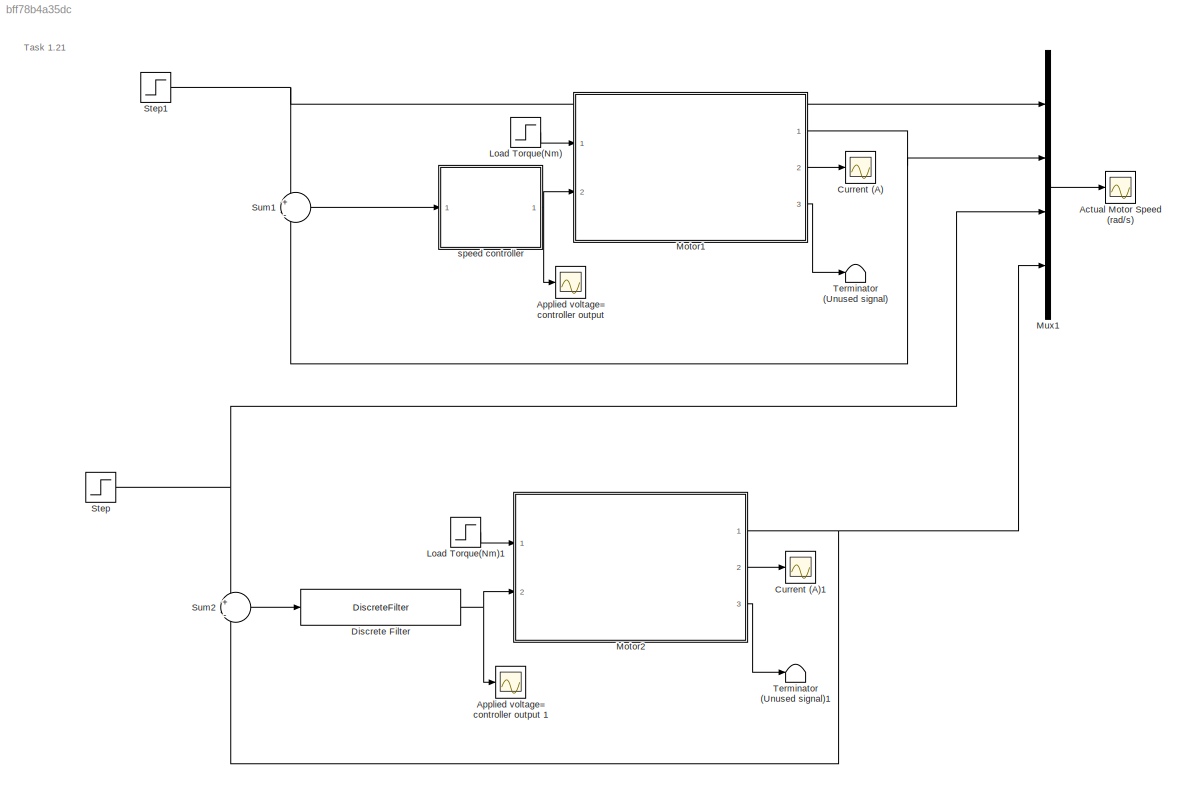
MODEL slx_bff78b4a35dc
KIND model
CONFIG AbsTol = auto
CONFIG EnableMultiTasking = off
CONFIG FixedStep = auto
CONFIG MaxStep = auto
CONFIG MinStep = auto
CONFIG PreLoadFcn = load('turstin.m')\n
CONFIG RelTol = 1e-3
CONFIG SampleTimeConstraint = Unconstrained
CONFIG Solver = VariableStepAuto
CONFIG SolverName = VariableStepAuto
CONFIG StartTime = 0.0
CONFIG StopTime = 30
BLOCK [Scope] Actual Motor Speed (rad//s)
  Floating = off
  NumInputPorts = 1
  Ports = [1]
  ScopeSpecificationString = Simulink.scopes.TimeScopeBlockCfg('CurrentConfiguration', extmgr.ConfigurationSet(extmgr.Configuration('Core','General UI',true),extmgr.Configuration('Core','Source UI',true),extmgr.Configuration('Sources','WiredSimulink',true,'DataLoggingVariableName','ScopeData1'),extmgr.Configuration('Visuals','Time Domain',true,'SerializedDisplays',{struct('MinYLimReal','-4.09821','MaxYLimReal','36.88393','YLa...<+1442ch>
BLOCK [Scope] Applied voltage= controller output 
  Floating = off
  NumInputPorts = 1
  Ports = [1]
  ScopeSpecificationString = Simulink.scopes.TimeScopeBlockCfg('CurrentConfiguration', extmgr.ConfigurationSet(extmgr.Configuration('Core','General UI',true),extmgr.Configuration('Core','Source UI',true),extmgr.Configuration('Sources','WiredSimulink',true,'DataLoggingVariableName','ScopeData2'),extmgr.Configuration('Visuals','Time Domain',true,'SerializedDisplays',{struct('MinYLimReal','-1.54981','MaxYLimReal','13.94832','YLa...<+1431ch>
BLOCK [Scope] Applied voltage= controller output 1
  Floating = off
  NumInputPorts = 1
  Ports = [1]
  ScopeSpecificationString = Simulink.scopes.TimeScopeBlockCfg('CurrentConfiguration', extmgr.ConfigurationSet(extmgr.Configuration('Core','General UI',true),extmgr.Configuration('Core','Source UI',true),extmgr.Configuration('Sources','WiredSimulink',true,'DataLoggingVariableName','ScopeData2'),extmgr.Configuration('Visuals','Time Domain',true,'SerializedDisplays',{struct('MinYLimReal','-1.6561','MaxYLimReal','14.90492','YLab...<+1473ch>
BLOCK [Scope] Current (A)
  Floating = off
  NumInputPorts = 1
  Ports = [1]
  ScopeSpecificationString = Simulink.scopes.TimeScopeBlockCfg('CurrentConfiguration', extmgr.ConfigurationSet(extmgr.Configuration('Core','General UI',true),extmgr.Configuration('Core','Source UI',true),extmgr.Configuration('Sources','WiredSimulink',true),extmgr.Configuration('Visuals','Time Domain',true,'SerializedDisplays',{struct('MinYLimReal','-0.33169','MaxYLimReal','2.98518','YLabelReal','','MinYLimMag','0.00000','MaxY...<+1355ch>
BLOCK [Scope] Current (A)1
  Floating = off
  NumInputPorts = 1
  Ports = [1]
  ScopeSpecificationString = Simulink.scopes.TimeScopeBlockCfg('CurrentConfiguration', extmgr.ConfigurationSet(extmgr.Configuration('Core','General UI',true),extmgr.Configuration('Core','Source UI',true),extmgr.Configuration('Sources','WiredSimulink',true,'DataLoggingVariableName','ScopeData3'),extmgr.Configuration('Visuals','Time Domain',true,'SerializedDisplays',{struct('MinYLimReal','-18.67213','MaxYLimReal','21.85139','YL...<+1496ch>
BLOCK [DiscreteFilter] Discrete Filter 
  Denominator = [1 -1]
  InputPortMap = u0
  Numerator = [0.0459 0.0291]
  Ports = [1, 1]
  SampleTime = Tsample
BLOCK [Step] Load Torque(Nm)
  After = 0.25
  SampleTime = 0
  Time = 15
BLOCK [Step] Load Torque(Nm)1
  After = 0.25
  SampleTime = 0
  Time = 15
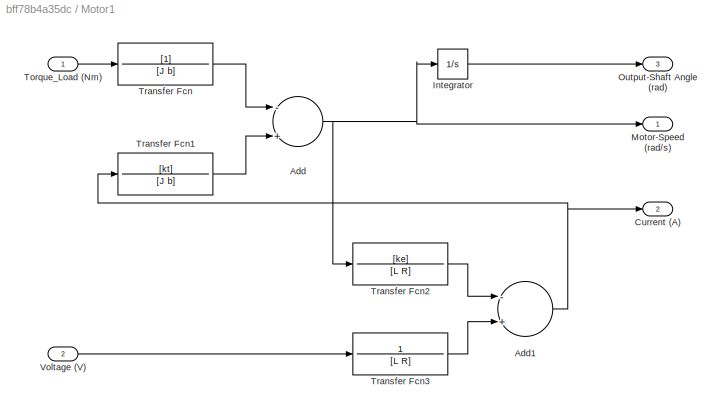
BLOCK [SubSystem] Motor1
  Ports = [2, 3]
  RequestExecContextInheritance = off
BLOCK [Sum] Motor1/Add
  InputSameDT = off
  Inputs = -+
  OutDataTypeStr = Inherit: Inherit via internal rule
  Ports = [2, 1]
  SaturateOnIntegerOverflow = off
BLOCK [Sum] Motor1/Add1
  InputSameDT = off
  Inputs = -+
  OutDataTypeStr = Inherit: Inherit via internal rule
  Ports = [2, 1]
  SaturateOnIntegerOverflow = off
BLOCK [Outport] Motor1/Current (A)
  IconDisplay = Port number
  Port = 2
  VectorParamsAs1DForOutWhenUnconnected = off
BLOCK [Integrator] Motor1/Integrator
  Ports = [1, 1]
BLOCK [Outport] Motor1/Motor-Speed (rad//s)
  IconDisplay = Port number
  VectorParamsAs1DForOutWhenUnconnected = off
BLOCK [Outport] Motor1/Output-Shaft Angle (rad)
  IconDisplay = Port number
  Port = 3
  VectorParamsAs1DForOutWhenUnconnected = off
BLOCK [Inport] Motor1/Torque_Load (Nm)
  IconDisplay = Port number
BLOCK [TransferFcn] Motor1/Transfer Fcn
  Denominator = [J b]
BLOCK [TransferFcn] Motor1/Transfer Fcn1
  Denominator = [J b]
  Numerator = [kt]
BLOCK [TransferFcn] Motor1/Transfer Fcn2
  Denominator = [L R]
  Numerator = [ke]
BLOCK [TransferFcn] Motor1/Transfer Fcn3
  Denominator = [L R]
  Numerator = 1
BLOCK [Inport] Motor1/Voltage (V)
  IconDisplay = Port number
  Port = 2
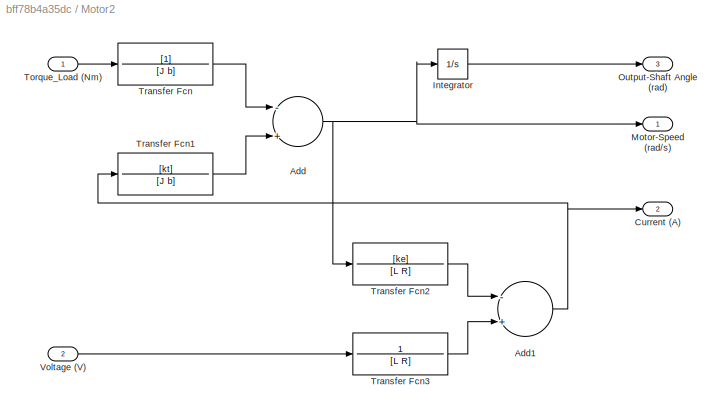
BLOCK [SubSystem] Motor2
  Ports = [2, 3]
  RequestExecContextInheritance = off
BLOCK [Sum] Motor2/Add
  InputSameDT = off
  Inputs = -+
  OutDataTypeStr = Inherit: Inherit via internal rule
  Ports = [2, 1]
  SaturateOnIntegerOverflow = off
BLOCK [Sum] Motor2/Add1
  InputSameDT = off
  Inputs = -+
  OutDataTypeStr = Inherit: Inherit via internal rule
  Ports = [2, 1]
  SaturateOnIntegerOverflow = off
BLOCK [Outport] Motor2/Current (A)
  IconDisplay = Port number
  Port = 2
  VectorParamsAs1DForOutWhenUnconnected = off
BLOCK [Integrator] Motor2/Integrator
  Ports = [1, 1]
BLOCK [Outport] Motor2/Motor-Speed (rad//s)
  IconDisplay = Port number
  VectorParamsAs1DForOutWhenUnconnected = off
BLOCK [Outport] Motor2/Output-Shaft Angle (rad)
  IconDisplay = Port number
  Port = 3
  VectorParamsAs1DForOutWhenUnconnected = off
BLOCK [Inport] Motor2/Torque_Load (Nm)
  IconDisplay = Port number
BLOCK [TransferFcn] Motor2/Transfer Fcn
  Denominator = [J b]
BLOCK [TransferFcn] Motor2/Transfer Fcn1
  Denominator = [J b]
  Numerator = [kt]
BLOCK [TransferFcn] Motor2/Transfer Fcn2
  Denominator = [L R]
  Numerator = [ke]
BLOCK [TransferFcn] Motor2/Transfer Fcn3
  Denominator = [L R]
  Numerator = 1
BLOCK [Inport] Motor2/Voltage (V)
  IconDisplay = Port number
  Port = 2
BLOCK [Mux] Mux1
  DisplayOption = bar
  Ports = [4, 1]
BLOCK [Step] Step
  After = 31.4
  SampleTime = 0
BLOCK [Step] Step1
  After = 31.4
  SampleTime = 0
BLOCK [Sum] Sum1
  IconShape = round
  InputSameDT = off
  Inputs = +|-
  OutDataTypeStr = Inherit: Inherit via internal rule
  Ports = [2, 1]
  SaturateOnIntegerOverflow = off
BLOCK [Sum] Sum2
  IconShape = round
  InputSameDT = off
  Inputs = +|-
  OutDataTypeStr = Inherit: Inherit via internal rule
  Ports = [2, 1]
  SaturateOnIntegerOverflow = off
BLOCK [Terminator] Terminator (Unused signal)
BLOCK [Terminator] Terminator (Unused signal)1
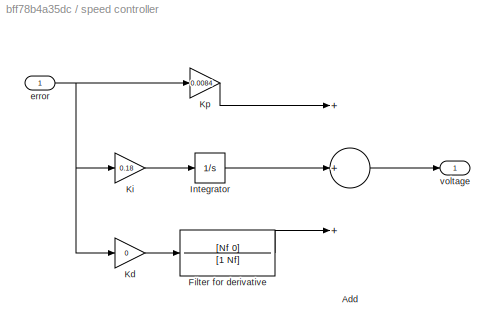
BLOCK [SubSystem] speed controller
  Ports = [1, 1]
  RequestExecContextInheritance = off
BLOCK [Sum] speed controller/Add
  InputSameDT = off
  Inputs = +++
  OutDataTypeStr = Inherit: Inherit via internal rule
  Ports = [3, 1]
  SaturateOnIntegerOverflow = off
BLOCK [TransferFcn] speed controller/Filter for derivative
  Denominator = [1 Nf]
  Numerator = [Nf 0]
BLOCK [Integrator] speed controller/Integrator
  Ports = [1, 1]
BLOCK [Gain] speed controller/Kd
  Gain = 0
  OutDataTypeStr = Inherit: Inherit via internal rule
  ParamDataTypeStr = Inherit: Inherit via internal rule
  SaturateOnIntegerOverflow = off
BLOCK [Gain] speed controller/Ki
  Gain = 0.18
  OutDataTypeStr = Inherit: Inherit via internal rule
  ParamDataTypeStr = Inherit: Inherit via internal rule
  SaturateOnIntegerOverflow = off
BLOCK [Gain] speed controller/Kp
  Gain = 0.0084
  OutDataTypeStr = Inherit: Inherit via internal rule
  ParamDataTypeStr = Inherit: Inherit via internal rule
  SaturateOnIntegerOverflow = off
BLOCK [Inport] speed controller/error
  IconDisplay = Port number
BLOCK [Outport] speed controller/voltage
  IconDisplay = Port number
  VectorParamsAs1DForOutWhenUnconnected = off
ANNOTATION (root): Task 1.21
NET Discrete Filter :1 -> Applied voltage= controller output 1:1, Motor2:2
LINE Load Torque(Nm)1:1 -> Motor2:1
LINE Load Torque(Nm):1 -> Motor1:1
NET Motor1/Add1:1 -> Motor1/Current (A):1, Motor1/Transfer Fcn1:1
NET Motor1/Add:1 -> Motor1/Integrator:1, Motor1/Motor-Speed (rad//s):1, Motor1/Transfer Fcn2:1
LINE Motor1/Integrator:1 -> Motor1/Output-Shaft Angle (rad):1
LINE Motor1/Torque_Load (Nm):1 -> Motor1/Transfer Fcn:1
LINE Motor1/Transfer Fcn1:1 -> Motor1/Add:2
LINE Motor1/Transfer Fcn2:1 -> Motor1/Add1:1
LINE Motor1/Transfer Fcn3:1 -> Motor1/Add1:2
LINE Motor1/Transfer Fcn:1 -> Motor1/Add:1
LINE Motor1/Voltage (V):1 -> Motor1/Transfer Fcn3:1
NET Motor1:1 -> Mux1:2, Sum1:2
LINE Motor1:2 -> Current (A):1
LINE Motor1:3 -> Terminator (Unused signal):1
NET Motor2/Add1:1 -> Motor2/Current (A):1, Motor2/Transfer Fcn1:1
NET Motor2/Add:1 -> Motor2/Integrator:1, Motor2/Motor-Speed (rad//s):1, Motor2/Transfer Fcn2:1
LINE Motor2/Integrator:1 -> Motor2/Output-Shaft Angle (rad):1
LINE Motor2/Torque_Load (Nm):1 -> Motor2/Transfer Fcn:1
LINE Motor2/Transfer Fcn1:1 -> Motor2/Add:2
LINE Motor2/Transfer Fcn2:1 -> Motor2/Add1:1
LINE Motor2/Transfer Fcn3:1 -> Motor2/Add1:2
LINE Motor2/Transfer Fcn:1 -> Motor2/Add:1
LINE Motor2/Voltage (V):1 -> Motor2/Transfer Fcn3:1
NET Motor2:1 -> Mux1:4, Sum2:2
LINE Motor2:2 -> Current (A)1:1
LINE Motor2:3 -> Terminator (Unused signal)1:1
LINE Mux1:1 -> Actual Motor Speed (rad//s):1
NET Step1:1 -> Mux1:1, Sum1:1
NET Step:1 -> Mux1:3, Sum2:1
LINE Sum1:1 -> speed controller:1
LINE Sum2:1 -> Discrete Filter :1
LINE speed controller/Add:1 -> speed controller/voltage:1
LINE speed controller/Filter for derivative:1 -> speed controller/Add:3
LINE speed controller/Integrator:1 -> speed controller/Add:2
LINE speed controller/Kd:1 -> speed controller/Filter for derivative:1
LINE speed controller/Ki:1 -> speed controller/Integrator:1
LINE speed controller/Kp:1 -> speed controller/Add:1
NET speed controller/error:1 -> speed controller/Kd:1, speed controller/Ki:1, speed controller/Kp:1
NET speed controller:1 -> Applied voltage= controller output :1, Motor1:2
note: NET lines group one-source signal fan-out (src -> all destinations, sorted); 1:1 wires keep LINE
